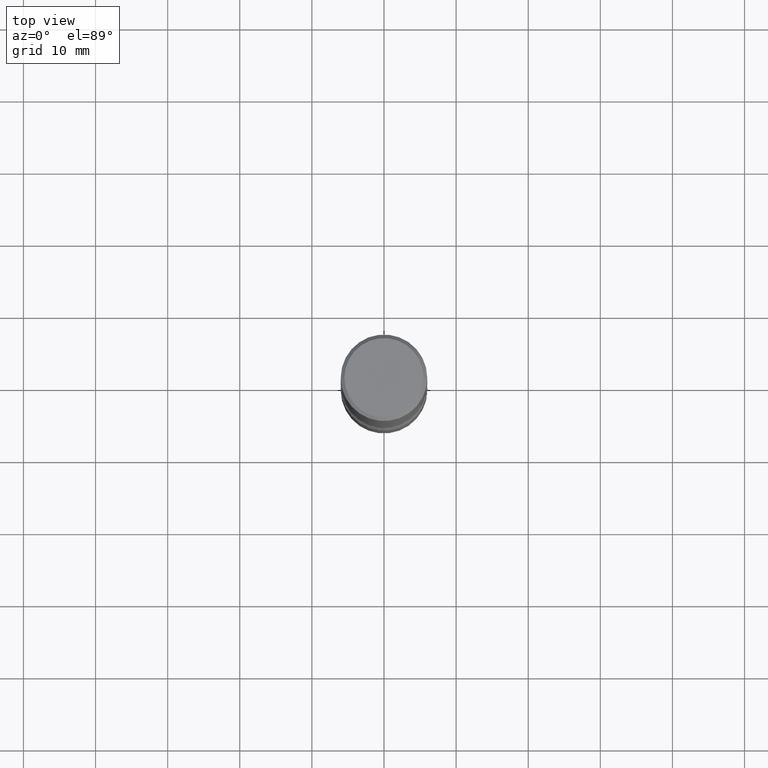
[diagram: clean part render]
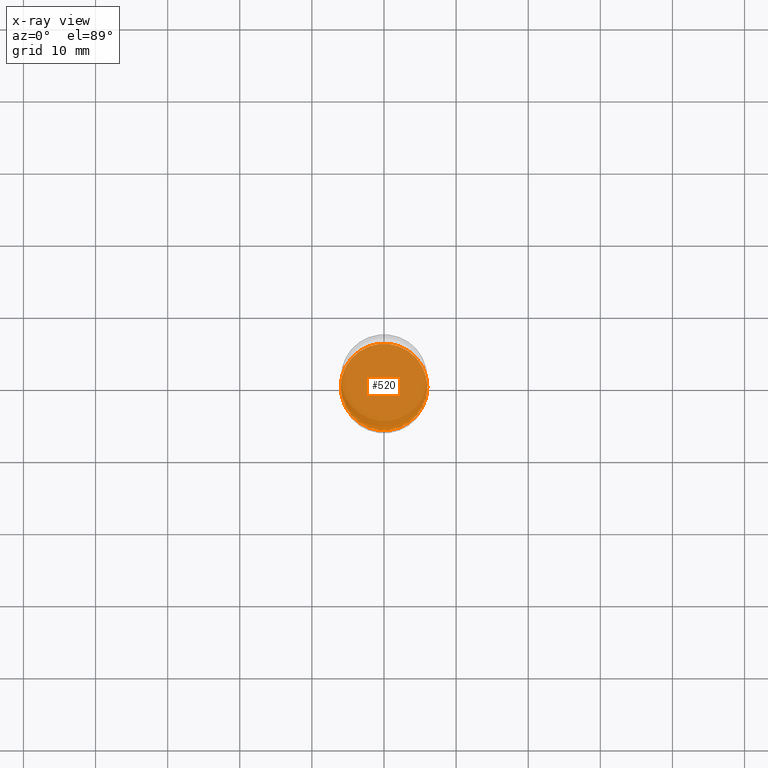
[diagram: x-ray — body ghosted, one internal face saturated and labeled with its STEP entity id]
A machine part, top view, then the same camera in x-ray: the body is ghosted and one INTERNAL B-rep face — a face not visible from any outside direction — is saturated and labeled: STEP entity #520.
In plain terms, the highlighted planar face has unit normal (0, -0, -1).
Its self-contained STEP definition (entity closure, byte-faithful):
#6 = VERTEX_POINT ( 'NONE', #487 ) ;
#47 = FACE_OUTER_BOUND ( 'NONE', #255, .T. ) ;
#60 = AXIS2_PLACEMENT_3D ( 'NONE', #472, #556, #339 ) ;
#72 = DIRECTION ( 'NONE',  ( -1.000000000000000000, 6.982962677686265922E-15, -4.876176775795935793E-29 ) ) ;
#92 = VERTEX_POINT ( 'NONE', #233 ) ;
#168 = DIRECTION ( 'NONE',  ( 1.000000000000000000, -6.982962677686269077E-15, 0.000000000000000000 ) ) ;
#205 = EDGE_CURVE ( 'NONE', #92, #6, #235, .T. ) ;
#233 = CARTESIAN_POINT ( 'NONE',  ( -0.2362000000000001321, -1.022834771985753829E-14, -2.913400000000000212 ) ) ;
#235 = CIRCLE ( 'NONE', #547, 0.2362000000000001321 ) ;
#248 = EDGE_CURVE ( 'NONE', #6, #92, #464, .T. ) ;
#255 = EDGE_LOOP ( 'NONE', ( #302, #517 ) ) ;
#302 = ORIENTED_EDGE ( 'NONE', *, *, #248, .T. ) ;
#324 = DIRECTION ( 'NONE',  ( 2.438088387897960049E-29, -3.491481338843145188E-15, -1.000000000000000000 ) ) ;
#325 = CARTESIAN_POINT ( 'NONE',  ( 7.124628819939777829E-29, -1.017208173258562247E-14, -2.913400000000000212 ) ) ;
#339 = DIRECTION ( 'NONE',  ( 1.000000000000000000, -6.982962677686269077E-15, 0.000000000000000000 ) ) ;
#370 = PLANE ( 'NONE',  #486 ) ;
#375 = DIRECTION ( 'NONE',  ( -2.445468806185136597E-29, 3.491481338843145583E-15, 1.000000000000000000 ) ) ;
#464 = CIRCLE ( 'NONE', #60, 0.2362000000000001321 ) ;
#472 = CARTESIAN_POINT ( 'NONE',  ( 7.124628819939777829E-29, -1.017208173258562247E-14, -2.913400000000000212 ) ) ;
#486 = AXIS2_PLACEMENT_3D ( 'NONE', #325, #324, #72 ) ;
#487 = CARTESIAN_POINT ( 'NONE',  ( 0.2362000000000001321, -1.182145751705511899E-14, -2.913400000000000212 ) ) ;
#517 = ORIENTED_EDGE ( 'NONE', *, *, #205, .T. ) ;
#520 = ADVANCED_FACE ( 'NONE', ( #47 ), #370, .F. ) ;
#547 = AXIS2_PLACEMENT_3D ( 'NONE', #552, #375, #168 ) ;
#552 = CARTESIAN_POINT ( 'NONE',  ( 7.124628819939777829E-29, -1.017208173258562247E-14, -2.913400000000000212 ) ) ;
#556 = DIRECTION ( 'NONE',  ( -2.445468806185136597E-29, 3.491481338843145583E-15, 1.000000000000000000 ) ) ;